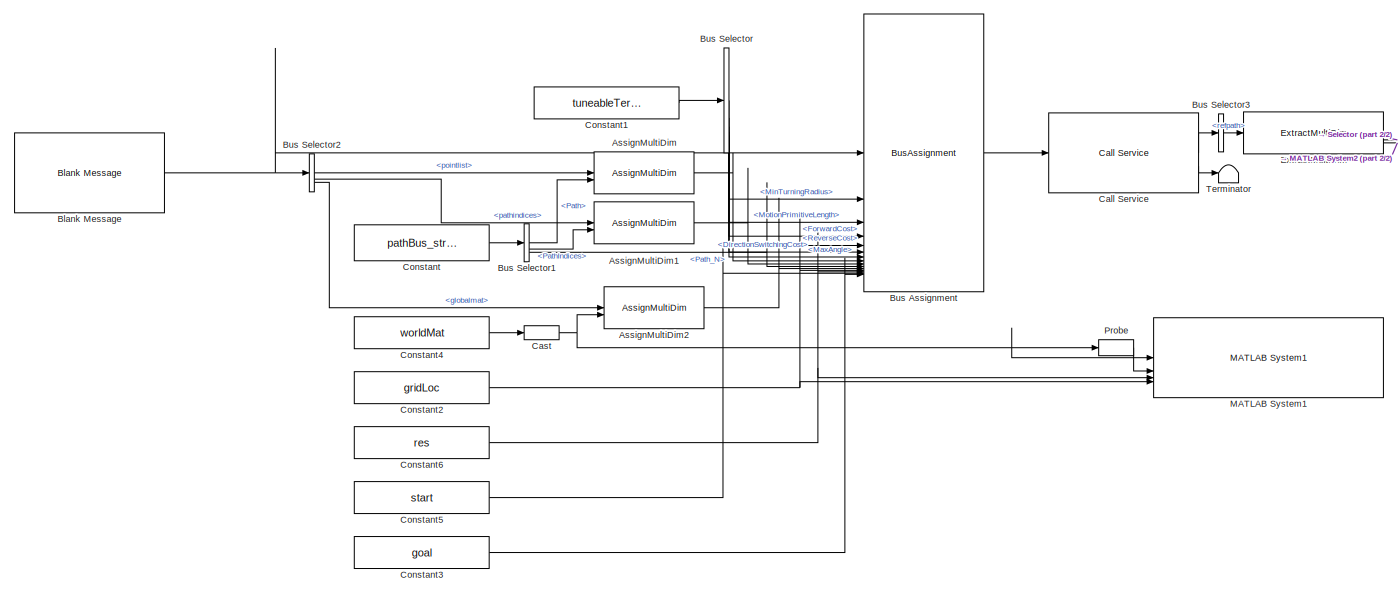
[diagram: root canvas - part 1/2, most of the canvas]
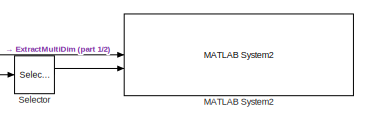
[diagram: root canvas - part 2/2, top right region]
MODEL slx_70067c94d1a2
KIND model
CONFIG AbsTol = auto
CONFIG EnableMultiTasking = off
CONFIG FixedStep = auto
CONFIG InitFcn = % Make sure server is running\nsvrMdlName = 'routePlanServer';\nload_system(svrMdlName);\nset_param(svrMdlName,'SimulationCommand','Start');\npause(1);
CONFIG MaxStep = auto
CONFIG MinStep = auto
CONFIG RelTol = 1e-3
CONFIG SampleTimeConstraint = Unconstrained
CONFIG SolverName = FixedStepAuto
CONFIG StartTime = 0.0
CONFIG StopFcn = % Make sure server is running\nsvrMdlName = 'routePlanServer';\nload_system(svrMdlName);\nset_param(svrMdlName,'SimulationCommand','Stop');
CONFIG StopTime = 10.0
WORKSPACE source: mxarray member
WORKSPACE SL_ROS_VariableLengthArrays_MaxSizes: object (value not decoded)
BLOCK [Reference] AssignMultiDim  REF=roshelperlib/AssignMultiDim  (lib defined in slx_3328ea0e13a5)
  SourceBlock = roshelperlib/AssignMultiDim
  SourceType = SubSystem
BLOCK [Reference] AssignMultiDim1  REF=roshelperlib/AssignMultiDim  (lib defined in slx_3328ea0e13a5)
  SourceBlock = roshelperlib/AssignMultiDim
  SourceType = SubSystem
BLOCK [Reference] AssignMultiDim2  REF=roshelperlib/AssignMultiDim  (lib defined in slx_3328ea0e13a5)
  SourceBlock = roshelperlib/AssignMultiDim
  SourceType = SubSystem
BLOCK [Reference] Blank Message  REF=ros2lib/Blank Message  (lib defined in slx_3c1549211f48)
  SourceBlock = ros2lib/Blank Message
  SourceType = ROS2 Blank Message
BLOCK [BusAssignment] Bus Assignment
  AssignedSignals = tuneableterrainawareparams.minturningradius,tuneableterrainawareparams.motionprimitivelength,tuneableterrainawareparams.forwardcost,tuneableterrainawareparams.reversecost,tuneableterrainawareparams.directionswitchingcost,tuneableterrainawareparams.maxangle,pathlist.pointlist,pathlist.pathindices,pathlist.numpath,globalmat,gridloc,resolution,startpose,goalpose
BLOCK [BusSelector] Bus Selector
  OutputSignals = MinTurningRadius,MotionPrimitiveLength,ForwardCost,ReverseCost,DirectionSwitchingCost,MaxAngle
BLOCK [BusSelector] Bus Selector1
  OutputSignals = Path,PathIndices,Path_N
BLOCK [BusSelector] Bus Selector2
  OutputSignals = pathlist.pointlist,pathlist.pathindices,globalmat
BLOCK [BusSelector] Bus Selector3
  OutputSignals = refpath
BLOCK [Reference] Call Service  REF=ros2lib/Call Service  (lib defined in slx_3c1549211f48)
  SourceBlock = ros2lib/Call Service
  SourceType = ROS2 Call Service
BLOCK [DataTypeConversion] Cast
  OutDataTypeStr = int8
  RndMeth = Floor
  SaturateOnIntegerOverflow = off
BLOCK [Constant] Constant
  OutDataTypeStr = Bus: pathList_fixed_bus
  SampleTime = -1
  Value = pathBus_struct
  VectorParams1D = off
BLOCK [Constant] Constant1
  OutDataTypeStr = Bus: fsp_tunable_bus
  Value = tuneableTerrainAwareParams
BLOCK [Constant] Constant2
  Value = gridLoc
BLOCK [Constant] Constant3
  Value = goal
BLOCK [Constant] Constant4
  Value = worldMat
BLOCK [Constant] Constant5
  Value = start
BLOCK [Constant] Constant6
  Value = res
BLOCK [Reference] ExtractMultiDim  REF=roshelperlib/ExtractMultiDim  (lib defined in slx_3328ea0e13a5)
  SourceBlock = roshelperlib/ExtractMultiDim
BLOCK [Reference] MATLAB System1  REF=roshelperlib/MATLAB System1  (lib defined in slx_3328ea0e13a5)
  SourceBlock = roshelperlib/MATLAB System1
  SourceType = exampleHelperMapVisualizerSys
BLOCK [Reference] MATLAB System2  REF=roshelperlib/MATLAB System2  (lib defined in slx_3328ea0e13a5)
  SourceBlock = roshelperlib/MATLAB System2
  SourceType = exampleHelperPathVisualizerSys
BLOCK [Probe] Probe
  ProbeComplexSignal = off
  ProbeSampleTime = off
  ProbeSignalDimensions = on
  ProbeWidth = off
BLOCK [Selector] Selector
  IndexOptions = Index vector (dialog)
  Indices = 1
  InputPortWidth = 2
  OutputSizes = 1
BLOCK [Terminator] Terminator
LINE AssignMultiDim1:1 -> Bus Assignment:9
LINE AssignMultiDim2:1 -> Bus Assignment:11
LINE AssignMultiDim:1 -> Bus Assignment:8
NET Blank Message:1 -> Bus Assignment:1, Bus Selector2:1
LINE Bus Assignment:1 -> Call Service:1
LINE Bus Selector1:1 -> AssignMultiDim:2
LINE Bus Selector1:2 -> AssignMultiDim1:2
LINE Bus Selector1:3 -> Bus Assignment:10
LINE Bus Selector2:1 -> AssignMultiDim:1
LINE Bus Selector2:2 -> AssignMultiDim1:1
LINE Bus Selector2:3 -> AssignMultiDim2:1
LINE Bus Selector3:1 -> ExtractMultiDim:1
LINE Bus Selector:1 -> Bus Assignment:2
LINE Bus Selector:2 -> Bus Assignment:3
LINE Bus Selector:3 -> Bus Assignment:4
LINE Bus Selector:4 -> Bus Assignment:5
LINE Bus Selector:5 -> Bus Assignment:6
LINE Bus Selector:6 -> Bus Assignment:7
LINE Call Service:1 -> Bus Selector3:1
LINE Call Service:2 -> Terminator:1
NET Cast:1 -> AssignMultiDim2:2, MATLAB System1:1, Probe:1
LINE Constant1:1 -> Bus Selector:1
NET Constant2:1 -> Bus Assignment:12, MATLAB System1:4
LINE Constant3:1 -> Bus Assignment:15
LINE Constant4:1 -> Cast:1
LINE Constant5:1 -> Bus Assignment:14
NET Constant6:1 -> Bus Assignment:13, MATLAB System1:3
LINE Constant:1 -> Bus Selector1:1
LINE ExtractMultiDim:1 -> MATLAB System2:1
LINE ExtractMultiDim:2 -> Selector:1
LINE Probe:1 -> MATLAB System1:2
LINE Selector:1 -> MATLAB System2:2
note: NET lines group one-source signal fan-out (src -> all destinations, sorted); 1:1 wires keep LINE
